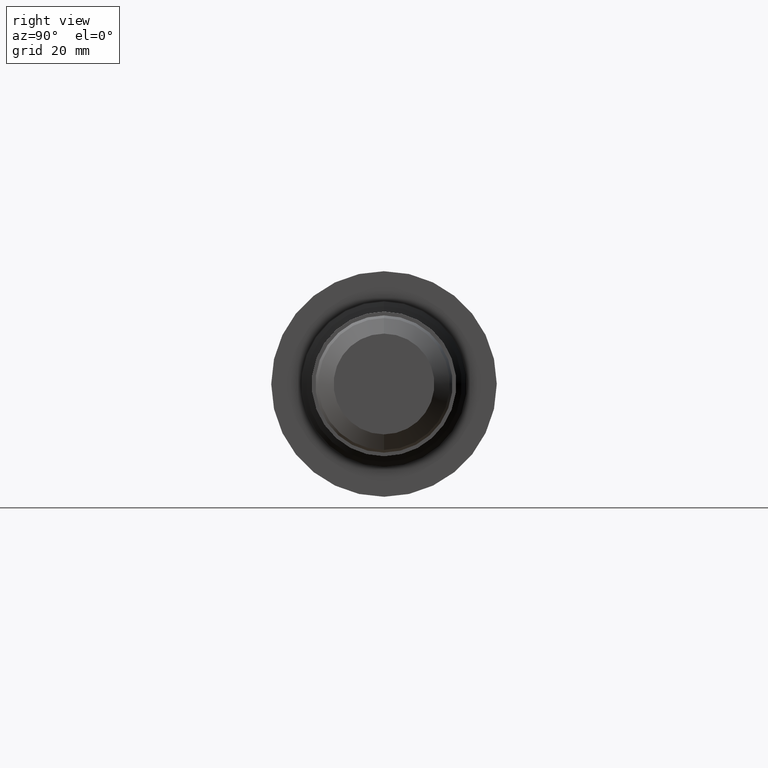
[diagram: clean part render]
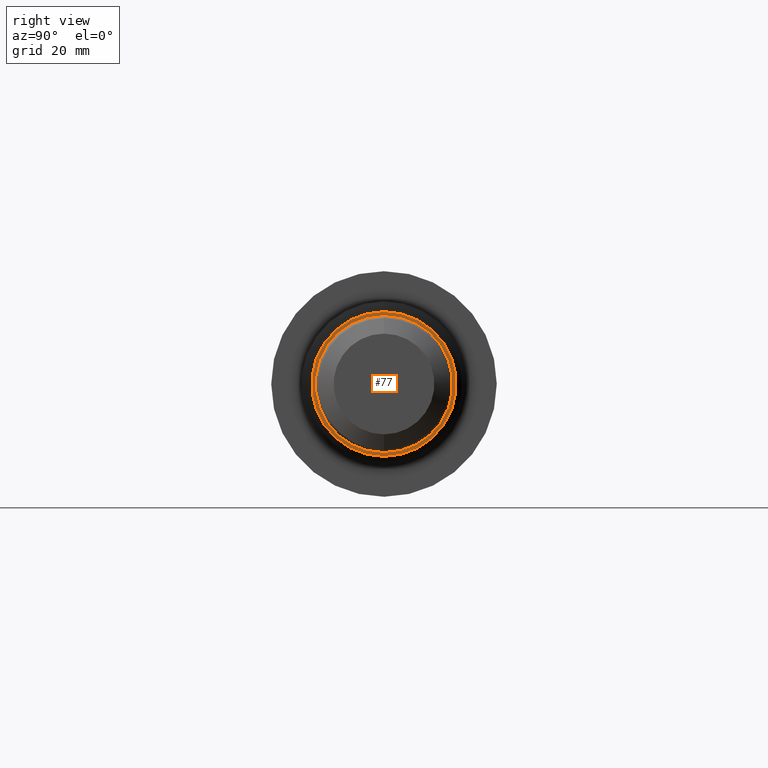
[diagram: same view with one face highlighted and labeled with its STEP entity id]
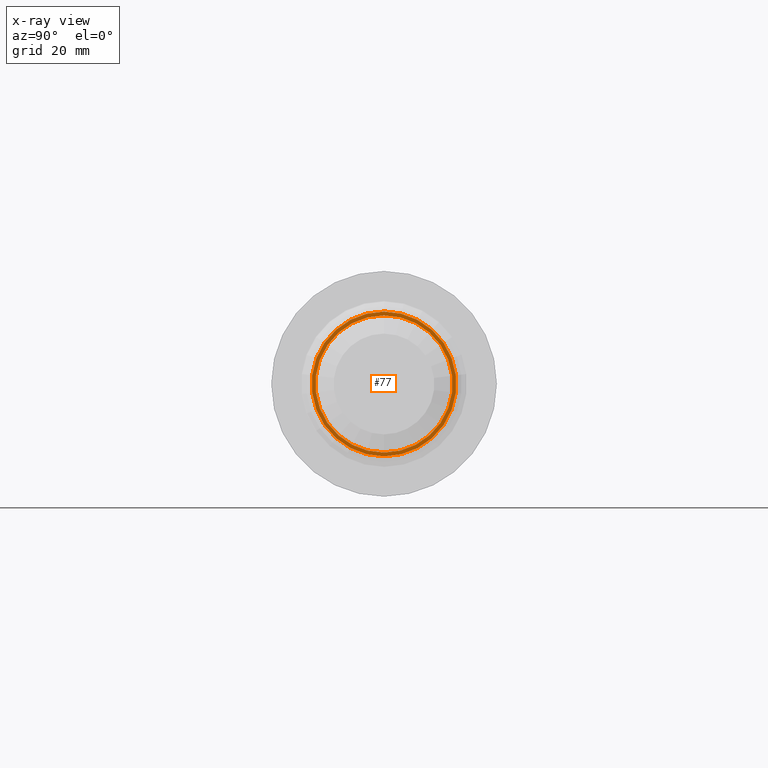
[diagram: x-ray of the same camera — body ghosted, the highlighted face saturated]
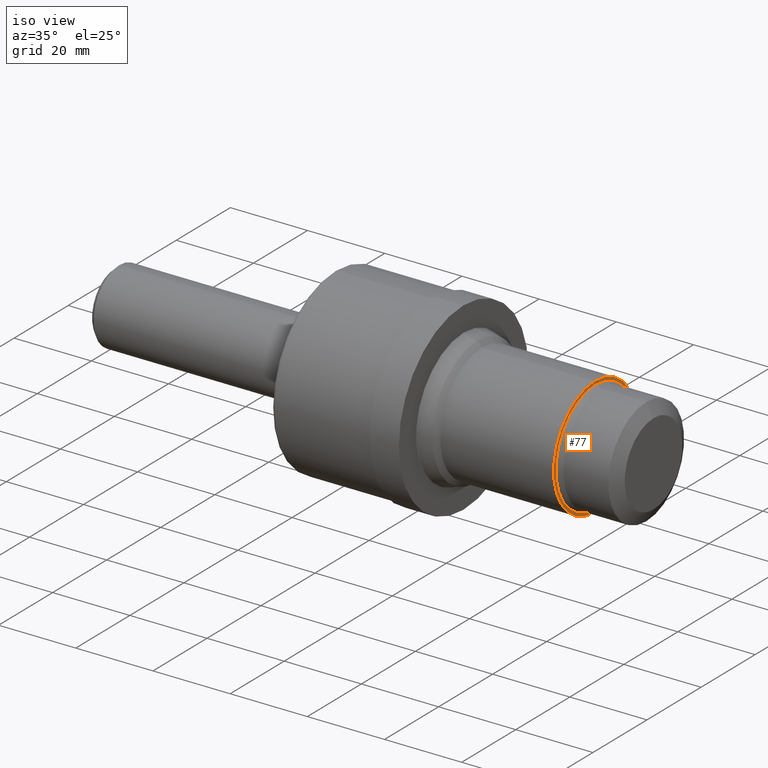
[diagram: same view with one face highlighted and labeled with its STEP entity id]
A machine part, right view. The second image highlights one B-rep face of the part: STEP entity #77.
The next image is the same camera in x-ray: the body ghosted, the highlighted face saturated — about 0% of this face is hidden behind the body in this view.
A second angle (iso view) of the same face is appended — the face is thin or edge-on in the first view.
In plain terms, the highlighted planar face has unit normal (-1, 0, -0).
Its self-contained STEP definition (entity closure, byte-faithful):
#3 = CARTESIAN_POINT ( 'NONE',  ( 4.905000000000000249, 0.0000000000000000000, 0.0000000000000000000 ) ) ;
#17 = DIRECTION ( 'NONE',  ( -1.000000000000000000, 0.0000000000000000000, -0.0000000000000000000 ) ) ;
#26 = CARTESIAN_POINT ( 'NONE',  ( 4.905000000000000249, 0.6045000000000000373, 0.0000000000000000000 ) ) ;
#77 = ADVANCED_FACE ( 'NONE', ( #297, #741 ), #308, .F. ) ;
#83 = VERTEX_POINT ( 'NONE', #173 ) ;
#98 = EDGE_CURVE ( 'NONE', #239, #83, #193, .T. ) ;
#103 = ORIENTED_EDGE ( 'NONE', *, *, #698, .T. ) ;
#112 = AXIS2_PLACEMENT_3D ( 'NONE', #478, #773, #522 ) ;
#135 = CIRCLE ( 'NONE', #112, 0.5734661545245026693 ) ;
#139 = CARTESIAN_POINT ( 'NONE',  ( 4.905000000000000249, 0.0000000000000000000, 0.0000000000000000000 ) ) ;
#146 = AXIS2_PLACEMENT_3D ( 'NONE', #139, #353, #438 ) ;
#151 = DIRECTION ( 'NONE',  ( 0.0000000000000000000, 0.0000000000000000000, 1.000000000000000000 ) ) ;
#162 = AXIS2_PLACEMENT_3D ( 'NONE', #836, #844, #448 ) ;
#172 = EDGE_LOOP ( 'NONE', ( #103, #489 ) ) ;
#173 = CARTESIAN_POINT ( 'NONE',  ( 4.905000000000000249, 7.402989900845750385E-17, -0.6045000000000000373 ) ) ;
#193 = CIRCLE ( 'NONE', #807, 0.6045000000000000373 ) ;
#196 = EDGE_LOOP ( 'NONE', ( #800, #637 ) ) ;
#228 = CARTESIAN_POINT ( 'NONE',  ( 4.905000000000000249, 0.0000000000000000000, 0.5734661545245026693 ) ) ;
#239 = VERTEX_POINT ( 'NONE', #505 ) ;
#297 = FACE_OUTER_BOUND ( 'NONE', #196, .T. ) ;
#298 = DIRECTION ( 'NONE',  ( -0.0000000000000000000, 0.0000000000000000000, 1.000000000000000000 ) ) ;
#308 = PLANE ( 'NONE',  #435 ) ;
#347 = VERTEX_POINT ( 'NONE', #228 ) ;
#353 = DIRECTION ( 'NONE',  ( -1.000000000000000000, -0.0000000000000000000, -0.0000000000000000000 ) ) ;
#364 = CIRCLE ( 'NONE', #162, 0.6045000000000000373 ) ;
#435 = AXIS2_PLACEMENT_3D ( 'NONE', #26, #17, #298 ) ;
#438 = DIRECTION ( 'NONE',  ( 0.0000000000000000000, 0.0000000000000000000, 1.000000000000000000 ) ) ;
#448 = DIRECTION ( 'NONE',  ( 0.0000000000000000000, 0.0000000000000000000, 1.000000000000000000 ) ) ;
#474 = VERTEX_POINT ( 'NONE', #629 ) ;
#478 = CARTESIAN_POINT ( 'NONE',  ( 4.905000000000000249, 0.0000000000000000000, 0.0000000000000000000 ) ) ;
#489 = ORIENTED_EDGE ( 'NONE', *, *, #701, .T. ) ;
#505 = CARTESIAN_POINT ( 'NONE',  ( 4.905000000000000249, 0.0000000000000000000, 0.6045000000000000373 ) ) ;
#522 = DIRECTION ( 'NONE',  ( 0.0000000000000000000, 0.0000000000000000000, 1.000000000000000000 ) ) ;
#556 = DIRECTION ( 'NONE',  ( -1.000000000000000000, -0.0000000000000000000, -0.0000000000000000000 ) ) ;
#629 = CARTESIAN_POINT ( 'NONE',  ( 4.905000000000000249, 7.022934905577736746E-17, -0.5734661545245026693 ) ) ;
#637 = ORIENTED_EDGE ( 'NONE', *, *, #825, .F. ) ;
#698 = EDGE_CURVE ( 'NONE', #347, #474, #792, .T. ) ;
#701 = EDGE_CURVE ( 'NONE', #474, #347, #135, .T. ) ;
#741 = FACE_BOUND ( 'NONE', #172, .T. ) ;
#773 = DIRECTION ( 'NONE',  ( -1.000000000000000000, -0.0000000000000000000, -0.0000000000000000000 ) ) ;
#792 = CIRCLE ( 'NONE', #146, 0.5734661545245026693 ) ;
#800 = ORIENTED_EDGE ( 'NONE', *, *, #98, .F. ) ;
#807 = AXIS2_PLACEMENT_3D ( 'NONE', #3, #556, #151 ) ;
#825 = EDGE_CURVE ( 'NONE', #83, #239, #364, .T. ) ;
#836 = CARTESIAN_POINT ( 'NONE',  ( 4.905000000000000249, 0.0000000000000000000, 0.0000000000000000000 ) ) ;
#844 = DIRECTION ( 'NONE',  ( -1.000000000000000000, -0.0000000000000000000, -0.0000000000000000000 ) ) ;